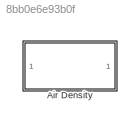
MODEL slx_8bb0e6e93b0f
KIND library
CONFIG AbsTol = auto
CONFIG EnableMultiTasking = off
CONFIG FixedStep = auto
CONFIG MaxStep = auto
CONFIG MinStep = auto
CONFIG RelTol = 1e-3
CONFIG SampleTimeConstraint = Unconstrained
CONFIG Solver = VariableStepAuto
CONFIG SolverName = VariableStepAuto
CONFIG StartTime = 0.0
CONFIG StopTime = 10.0
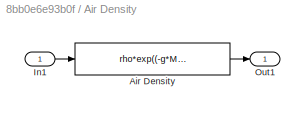
BLOCK [SubSystem] Air Density
  Ports = [1, 1]
  RequestExecContextInheritance = off
BLOCK [Fcn] Air Density/Air Density
  Expr = rho*exp((-g*M*(u))/(R*T_0))
BLOCK [Inport] Air Density/In1
BLOCK [Outport] Air Density/Out1
  VectorParamsAs1DForOutWhenUnconnected = off
LINE Air Density/Air Density:1 -> Air Density/Out1:1
LINE Air Density/In1:1 -> Air Density/Air Density:1
